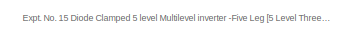
[diagram: root canvas - part 1/2, top left region]
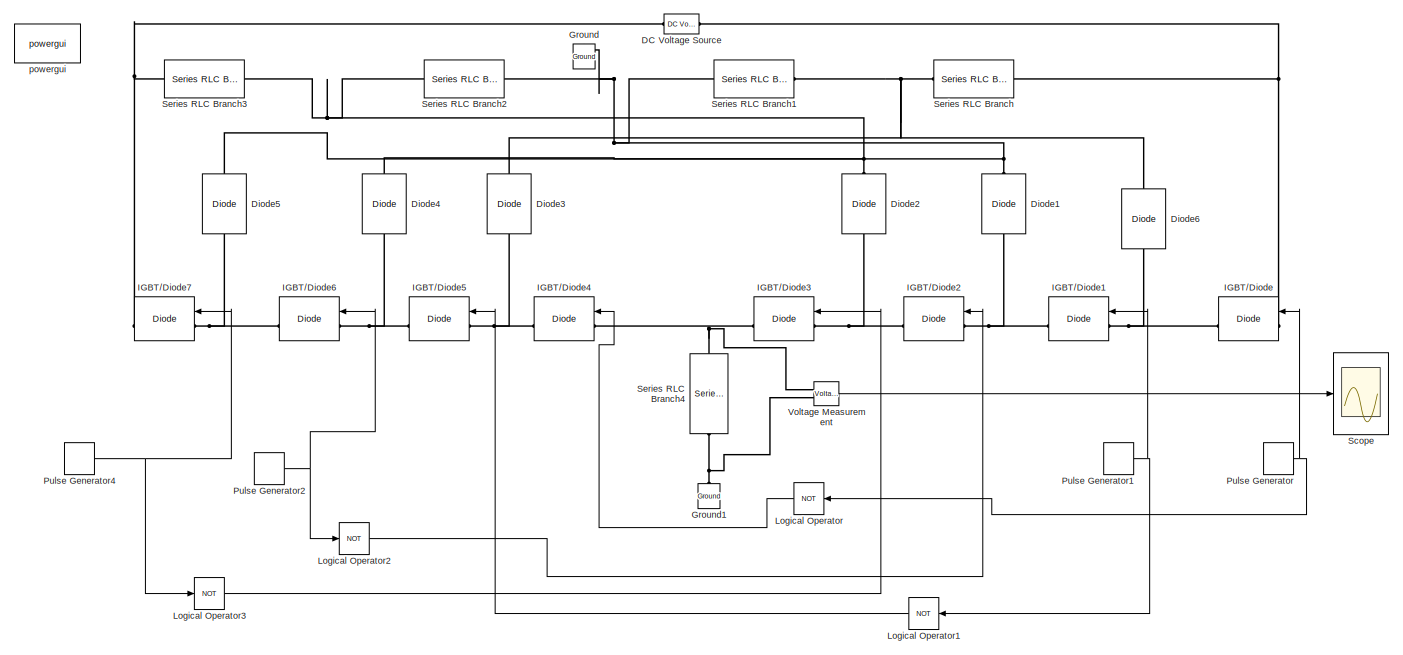
[diagram: root canvas - part 2/2, most of the canvas]
MODEL slx_5e3dd67e3a12
KIND model
CONFIG AbsTol = auto
CONFIG FixedStep = auto
CONFIG MaxStep = auto
CONFIG MinStep = auto
CONFIG RelTol = 1e-3
CONFIG SampleTimeConstraint = Unconstrained
CONFIG Solver = VariableStepAuto
CONFIG SolverMode = Auto
CONFIG SolverName = VariableStepAuto
CONFIG StartTime = 0.0
CONFIG StopTime = 0.8
BLOCK [Reference] DC Voltage Source  REF=powerlib/Electrical
Sources/DC Voltage Source
  Ports = [0, 0, 0, 0, 0, 1, 1]
  SourceBlock = powerlib/Electrical\nSources/DC Voltage Source
  SourceType = DC Voltage Source
BLOCK [Reference] Diode1  REF=powerlib/Power
Electronics/Diode
  Ports = [0, 0, 0, 0, 0, 1, 1]
  SourceBlock = powerlib/Power\nElectronics/Diode
  SourceType = Diode
BLOCK [Reference] Diode2  REF=powerlib/Power
Electronics/Diode
  Ports = [0, 0, 0, 0, 0, 1, 1]
  SourceBlock = powerlib/Power\nElectronics/Diode
  SourceType = Diode
BLOCK [Reference] Diode3  REF=powerlib/Power
Electronics/Diode
  Ports = [0, 0, 0, 0, 0, 1, 1]
  SourceBlock = powerlib/Power\nElectronics/Diode
  SourceType = Diode
BLOCK [Reference] Diode4  REF=powerlib/Power
Electronics/Diode
  Ports = [0, 0, 0, 0, 0, 1, 1]
  SourceBlock = powerlib/Power\nElectronics/Diode
  SourceType = Diode
BLOCK [Reference] Diode5  REF=powerlib/Power
Electronics/Diode
  Ports = [0, 0, 0, 0, 0, 1, 1]
  SourceBlock = powerlib/Power\nElectronics/Diode
  SourceType = Diode
BLOCK [Reference] Diode6  REF=powerlib/Power
Electronics/Diode
  Ports = [0, 0, 0, 0, 0, 1, 1]
  SourceBlock = powerlib/Power\nElectronics/Diode
  SourceType = Diode
BLOCK [Reference] Ground  REF=powerlib/Elements/Ground
  Ports = [0, 0, 0, 0, 0, 1]
  SourceBlock = powerlib/Elements/Ground
  SourceType = Ground
BLOCK [Reference] Ground1  REF=powerlib/Elements/Ground
  Ports = [0, 0, 0, 0, 0, 1]
  SourceBlock = powerlib/Elements/Ground
  SourceType = Ground
BLOCK [Reference] IGBT//Diode  REF=powerlib/Power
Electronics/IGBT//Diode
  Ports = [1, 1, 0, 0, 0, 1, 1]
  SourceBlock = powerlib/Power\nElectronics/IGBT//Diode
  SourceType = IGBT/Diode
BLOCK [Reference] IGBT//Diode1  REF=powerlib/Power
Electronics/IGBT//Diode
  Ports = [1, 1, 0, 0, 0, 1, 1]
  SourceBlock = powerlib/Power\nElectronics/IGBT//Diode
  SourceType = IGBT/Diode
BLOCK [Reference] IGBT//Diode2  REF=powerlib/Power
Electronics/IGBT//Diode
  Ports = [1, 1, 0, 0, 0, 1, 1]
  SourceBlock = powerlib/Power\nElectronics/IGBT//Diode
  SourceType = IGBT/Diode
BLOCK [Reference] IGBT//Diode3  REF=powerlib/Power
Electronics/IGBT//Diode
  Ports = [1, 1, 0, 0, 0, 1, 1]
  SourceBlock = powerlib/Power\nElectronics/IGBT//Diode
  SourceType = IGBT/Diode
BLOCK [Reference] IGBT//Diode4  REF=powerlib/Power
Electronics/IGBT//Diode
  Ports = [1, 1, 0, 0, 0, 1, 1]
  SourceBlock = powerlib/Power\nElectronics/IGBT//Diode
  SourceType = IGBT/Diode
BLOCK [Reference] IGBT//Diode5  REF=powerlib/Power
Electronics/IGBT//Diode
  Ports = [1, 1, 0, 0, 0, 1, 1]
  SourceBlock = powerlib/Power\nElectronics/IGBT//Diode
  SourceType = IGBT/Diode
BLOCK [Reference] IGBT//Diode6  REF=powerlib/Power
Electronics/IGBT//Diode
  Ports = [1, 1, 0, 0, 0, 1, 1]
  SourceBlock = powerlib/Power\nElectronics/IGBT//Diode
  SourceType = IGBT/Diode
BLOCK [Reference] IGBT//Diode7  REF=powerlib/Power
Electronics/IGBT//Diode
  Ports = [1, 1, 0, 0, 0, 1, 1]
  SourceBlock = powerlib/Power\nElectronics/IGBT//Diode
  SourceType = IGBT/Diode
BLOCK [Logic] Logical Operator
  AllPortsSameDT = off
  IconShape = distinctive
  Operator = NOT
  OutDataTypeStr = boolean
  Ports = [1, 1]
BLOCK [Logic] Logical Operator1
  AllPortsSameDT = off
  IconShape = distinctive
  Operator = NOT
  OutDataTypeStr = boolean
  Ports = [1, 1]
BLOCK [Logic] Logical Operator2
  AllPortsSameDT = off
  IconShape = distinctive
  Operator = NOT
  OutDataTypeStr = boolean
  Ports = [1, 1]
BLOCK [Logic] Logical Operator3
  AllPortsSameDT = off
  IconShape = distinctive
  Operator = NOT
  OutDataTypeStr = boolean
  Ports = [1, 1]
BLOCK [DiscretePulseGenerator] Pulse Generator
  Period = 0.02
  PhaseDelay = 0.004
  Ports = [0, 1]
  PulseType = Time based
  PulseWidth = 10
BLOCK [DiscretePulseGenerator] Pulse Generator1
  Period = 0.02
  PhaseDelay = 0.002
  Ports = [0, 1]
  PulseType = Time based
  PulseWidth = 30
BLOCK [DiscretePulseGenerator] Pulse Generator2
  Period = 0.02
  PhaseDelay = 0.012
  Ports = [0, 1]
  PulseType = Time based
  PulseWidth = 30
BLOCK [DiscretePulseGenerator] Pulse Generator4
  Period = 0.02
  PhaseDelay = 0.014
  Ports = [0, 1]
  PulseType = Time based
  PulseWidth = 10
BLOCK [Scope] Scope
  Ports = [1]
  ScopeSpecificationString = Simulink.scopes.TimeScopeBlockCfg('CurrentConfiguration', extmgr.ConfigurationSet(extmgr.Configuration('Core','General UI',true,'FigureColor',[1 1 1]),extmgr.Configuration('Core','Source UI',true),extmgr.Configuration('Sources','WiredSimulink',true),extmgr.Configuration('Visuals','Time Domain',true,'SerializedDisplays',{struct('MinYLimReal','-32.5685','MaxYLimReal','31.34986','YLabelReal','','MinY...<+1696ch>
BLOCK [Reference] Series RLC Branch  REF=powerlib/Elements/Series RLC Branch
  Ports = [0, 0, 0, 0, 0, 1, 1]
  SourceBlock = powerlib/Elements/Series RLC Branch
  SourceType = Series RLC Branch
BLOCK [Reference] Series RLC Branch1  REF=powerlib/Elements/Series RLC Branch
  Ports = [0, 0, 0, 0, 0, 1, 1]
  SourceBlock = powerlib/Elements/Series RLC Branch
  SourceType = Series RLC Branch
BLOCK [Reference] Series RLC Branch2  REF=powerlib/Elements/Series RLC Branch
  Ports = [0, 0, 0, 0, 0, 1, 1]
  SourceBlock = powerlib/Elements/Series RLC Branch
  SourceType = Series RLC Branch
BLOCK [Reference] Series RLC Branch3  REF=powerlib/Elements/Series RLC Branch
  Ports = [0, 0, 0, 0, 0, 1, 1]
  SourceBlock = powerlib/Elements/Series RLC Branch
  SourceType = Series RLC Branch
BLOCK [Reference] Series RLC Branch4  REF=powerlib/Elements/Series RLC Branch
  Ports = [0, 0, 0, 0, 0, 1, 1]
  SourceBlock = powerlib/Elements/Series RLC Branch
  SourceType = Series RLC Branch
BLOCK [Reference] Voltage Measurement  REF=powerlib/Measurements/Voltage Measurement
  Ports = [0, 1, 0, 0, 0, 2]
  SourceBlock = powerlib/Measurements/Voltage Measurement
  SourceType = Voltage Measurement
  UserDataPersistent = on
BLOCK [Reference] powergui  REF=powerlib/powergui
  Ports = []
  Priority = 1
  SourceBlock = powerlib/powergui
  SourceType = PSB option menu block
  UserDataPersistent = on
ANNOTATION (root): Expt. No. 15 Diode Clamped 5 level Multilevel inverter -Five Leg [5 Level Three Phase Inverter]
LINE Logical Operator1:1 -> IGBT//Diode5:1
LINE Logical Operator2:1 -> IGBT//Diode2:1
LINE Logical Operator3:1 -> IGBT//Diode3:1
LINE Logical Operator:1 -> IGBT//Diode4:1
NET Pulse Generator1:1 -> IGBT//Diode1:1, Logical Operator1:1
NET Pulse Generator2:1 -> IGBT//Diode6:1, Logical Operator2:1
NET Pulse Generator4:1 -> IGBT//Diode7:1, Logical Operator3:1
NET Pulse Generator:1 -> IGBT//Diode:1, Logical Operator:1
LINE Voltage Measurement:1 -> Scope:1
PNET net1: DC Voltage Source:LConn1 -- IGBT//Diode7:RConn1 -- Series RLC Branch3:RConn1
PNET net2: DC Voltage Source:RConn1 -- IGBT//Diode:LConn1 -- Series RLC Branch:LConn1
PNET net3: Diode1:LConn1 -- Diode4:RConn1 -- Ground:LConn1 -- Series RLC Branch1:RConn1 -- Series RLC Branch2:LConn1
PNET net4: Diode1:RConn1 -- IGBT//Diode1:RConn1 -- IGBT//Diode2:LConn1
PNET net5: Diode2:LConn1 -- Diode5:RConn1 -- Series RLC Branch2:RConn1 -- Series RLC Branch3:LConn1
PNET net6: Diode2:RConn1 -- IGBT//Diode2:RConn1 -- IGBT//Diode3:LConn1
PNET net7: Diode3:LConn1 -- IGBT//Diode4:RConn1 -- IGBT//Diode5:LConn1
PNET net8: Diode3:RConn1 -- Diode6:LConn1 -- Series RLC Branch1:LConn1 -- Series RLC Branch:RConn1
PNET net9: Diode4:LConn1 -- IGBT//Diode5:RConn1 -- IGBT//Diode6:LConn1
PNET net10: Diode5:LConn1 -- IGBT//Diode6:RConn1 -- IGBT//Diode7:LConn1
PNET net11: Diode6:RConn1 -- IGBT//Diode1:LConn1 -- IGBT//Diode:RConn1
PNET net12: Ground1:LConn1 -- Series RLC Branch4:RConn1 -- Voltage Measurement:LConn2
PNET net13: IGBT//Diode3:RConn1 -- IGBT//Diode4:LConn1 -- Series RLC Branch4:LConn1 -- Voltage Measurement:LConn1
note: NET lines group one-source signal fan-out (src -> all destinations, sorted); 1:1 wires keep LINE; PNET lines group multi-terminal physical nets as a canonical sorted terminal list (undirected conserving connections); 2-terminal nets keep the pairwise PLINE form
